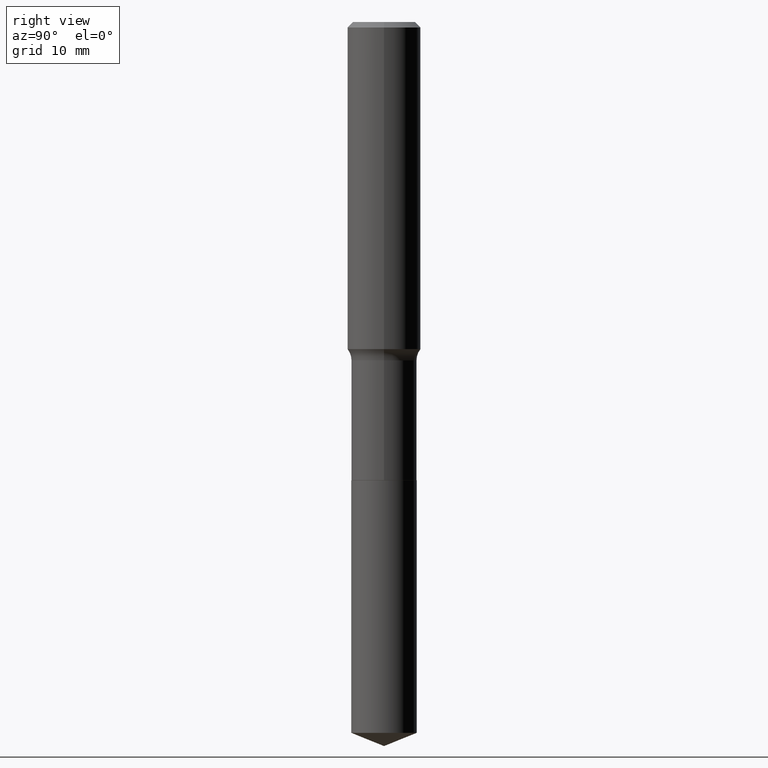
[diagram: clean part render]
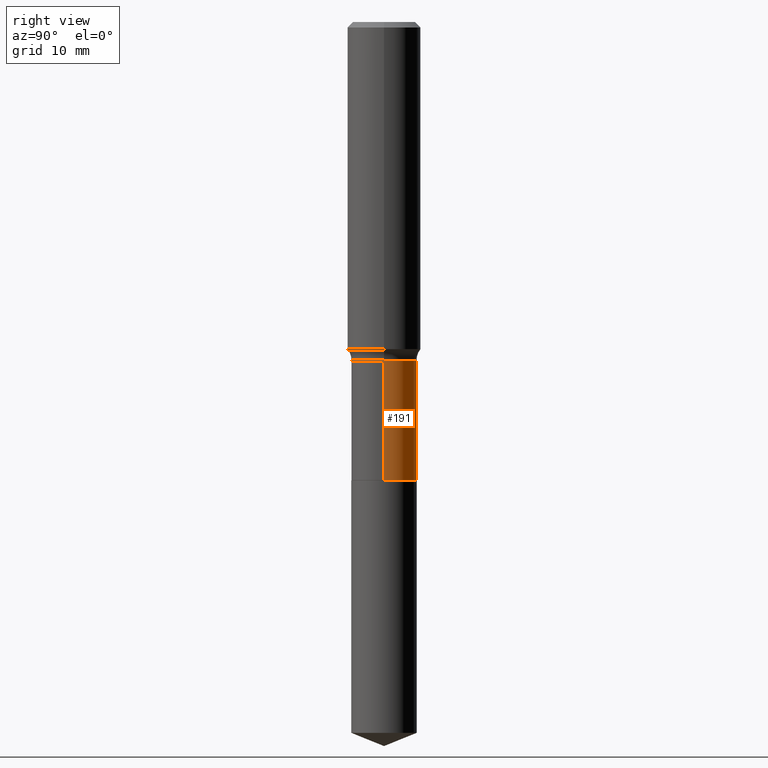
[diagram: same view with one face highlighted and labeled with its STEP entity id]
A machine part, right view. The second image highlights one B-rep face of the part: STEP entity #191.
In plain terms, the highlighted cylindrical surface (edge-blend (fillet) strip) has radius 3.5712 mm, axis along (-0, 0, 1).
Its self-contained STEP definition (entity closure, byte-faithful):
#21 = EDGE_CURVE ( 'NONE', #33, #302, #339, .T. ) ;
#33 = VERTEX_POINT ( 'NONE', #173 ) ;
#45 = DIRECTION ( 'NONE',  ( 1.000000000000000000, -6.982962677686266711E-15, 0.000000000000000000 ) ) ;
#50 = VECTOR ( 'NONE', #269, 39.37007874015748143 ) ;
#65 = AXIS2_PLACEMENT_3D ( 'NONE', #159, #308, #45 ) ;
#79 = CARTESIAN_POINT ( 'NONE',  ( -0.1405999999999999195, 9.990230864787002893E-16, -6.916022736898393535E-30 ) ) ;
#94 = DIRECTION ( 'NONE',  ( -2.445468806185136597E-29, 3.491481338843145583E-15, 1.000000000000000000 ) ) ;
#97 = VECTOR ( 'NONE', #221, 39.37007874015748143 ) ;
#103 = ORIENTED_EDGE ( 'NONE', *, *, #287, .T. ) ;
#115 = CIRCLE ( 'NONE', #438, 0.1405999999999999195 ) ;
#117 = LINE ( 'NONE', #126, #50 ) ;
#126 = CARTESIAN_POINT ( 'NONE',  ( 0.1405999999999999195, -9.818045524826887114E-16, 6.855904546769082070E-30 ) ) ;
#137 = AXIS2_PLACEMENT_3D ( 'NONE', #469, #94, #285 ) ;
#141 = CARTESIAN_POINT ( 'NONE',  ( 0.1405999999999999195, -6.057720122892853253E-15, -1.453799999999999981 ) ) ;
#143 = ORIENTED_EDGE ( 'NONE', *, *, #414, .F. ) ;
#149 = VERTEX_POINT ( 'NONE', #241 ) ;
#159 = CARTESIAN_POINT ( 'NONE',  ( 4.812682610572349594E-29, -6.871235274843310993E-15, -1.968000000000000194 ) ) ;
#173 = CARTESIAN_POINT ( 'NONE',  ( -0.1405999999999999750, -4.974552336148037872E-15, -1.968000000000000194 ) ) ;
#191 = ADVANCED_FACE ( 'NONE', ( #435 ), #319, .T. ) ;
#208 = CARTESIAN_POINT ( 'NONE',  ( 3.555222550431951451E-29, -5.075915570410164936E-15, -1.453799999999999981 ) ) ;
#221 = DIRECTION ( 'NONE',  ( -2.445468806185136877E-29, 3.491481338843145188E-15, 1.000000000000000000 ) ) ;
#241 = CARTESIAN_POINT ( 'NONE',  ( 0.1405999999999999750, -7.853039827325999309E-15, -1.968000000000000194 ) ) ;
#269 = DIRECTION ( 'NONE',  ( -2.445468806185136877E-29, 3.491481338843145188E-15, 1.000000000000000000 ) ) ;
#283 = CIRCLE ( 'NONE', #65, 0.1405999999999999750 ) ;
#284 = DIRECTION ( 'NONE',  ( -2.445468806185136597E-29, 3.491481338843145583E-15, 1.000000000000000000 ) ) ;
#285 = DIRECTION ( 'NONE',  ( 1.000000000000000000, -6.982962677686268288E-15, 4.876176775795935793E-29 ) ) ;
#286 = ORIENTED_EDGE ( 'NONE', *, *, #473, .F. ) ;
#287 = EDGE_CURVE ( 'NONE', #149, #33, #283, .T. ) ;
#302 = VERTEX_POINT ( 'NONE', #432 ) ;
#308 = DIRECTION ( 'NONE',  ( -2.445468806185136597E-29, 3.491481338843145583E-15, 1.000000000000000000 ) ) ;
#309 = ORIENTED_EDGE ( 'NONE', *, *, #21, .T. ) ;
#319 = CYLINDRICAL_SURFACE ( 'NONE', #137, 0.1405999999999999195 ) ;
#339 = LINE ( 'NONE', #79, #97 ) ;
#414 = EDGE_CURVE ( 'NONE', #149, #480, #117, .T. ) ;
#432 = CARTESIAN_POINT ( 'NONE',  ( -0.1405999999999999195, -4.974552336148037872E-15, -1.453799999999999981 ) ) ;
#435 = FACE_OUTER_BOUND ( 'NONE', #451, .T. ) ;
#438 = AXIS2_PLACEMENT_3D ( 'NONE', #208, #284, #479 ) ;
#451 = EDGE_LOOP ( 'NONE', ( #103, #309, #286, #143 ) ) ;
#469 = CARTESIAN_POINT ( 'NONE',  ( 0.000000000000000000, 0.000000000000000000, 0.000000000000000000 ) ) ;
#473 = EDGE_CURVE ( 'NONE', #480, #302, #115, .T. ) ;
#479 = DIRECTION ( 'NONE',  ( 1.000000000000000000, -6.982962677686269077E-15, 0.000000000000000000 ) ) ;
#480 = VERTEX_POINT ( 'NONE', #141 ) ;